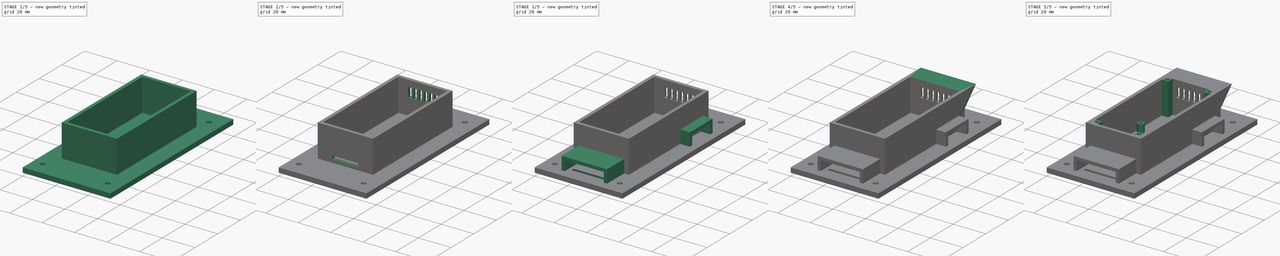
[diagram: build sequence overview — one tinted view per stage of 5, left to right]
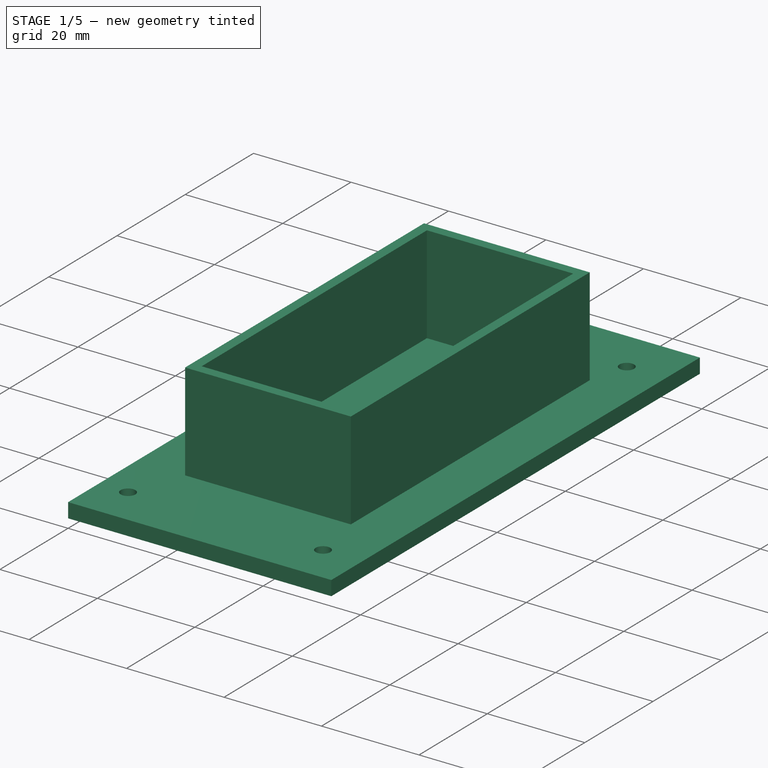
[diagram: stage 1 of 5 — iso view after this stage's code; geometry added in this stage tinted green]
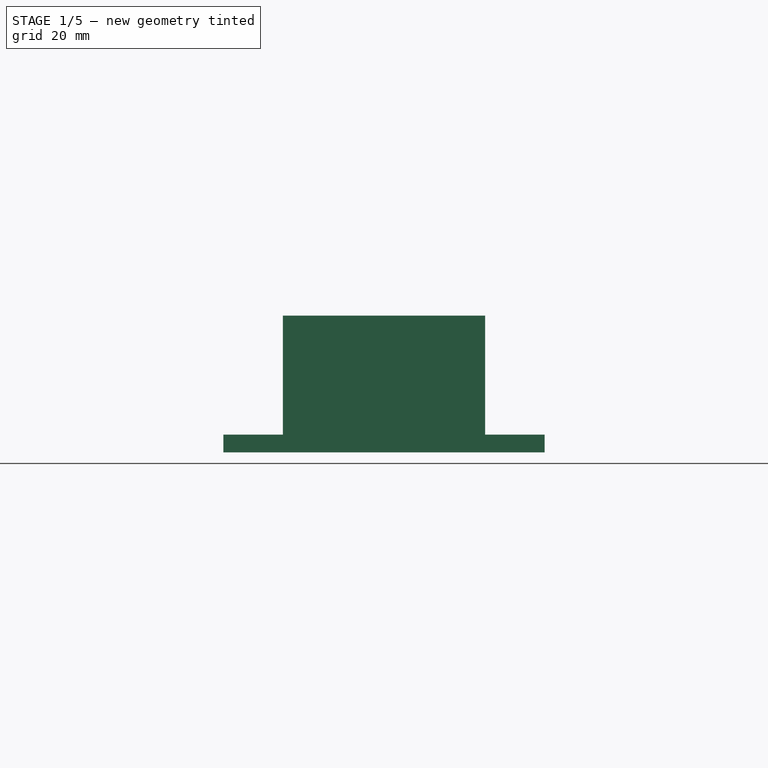
[diagram: stage 1 of 5 — front view after this stage's code; geometry added in this stage tinted green]
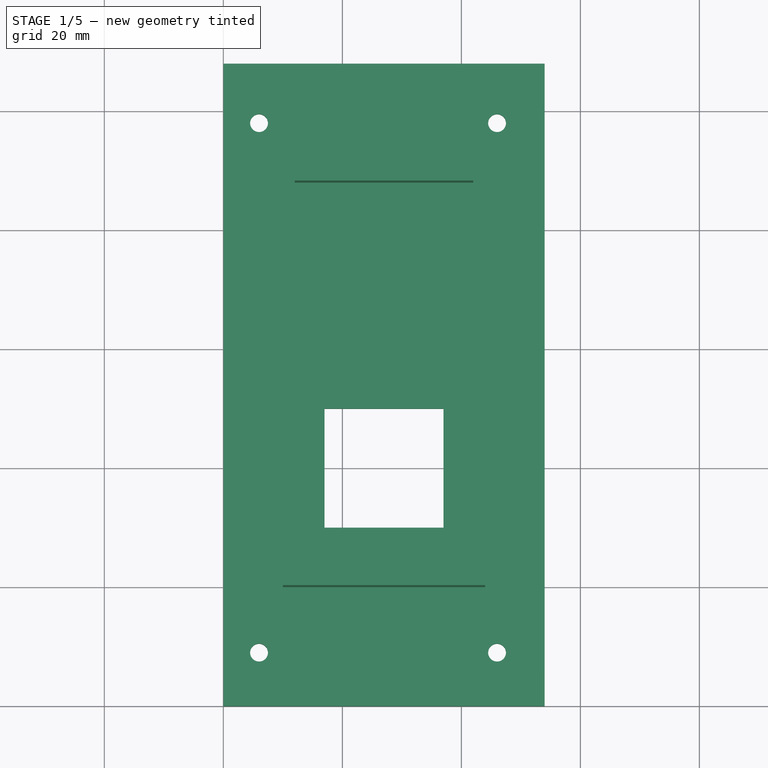
[diagram: stage 1 of 5 — top view after this stage's code; geometry added in this stage tinted green]
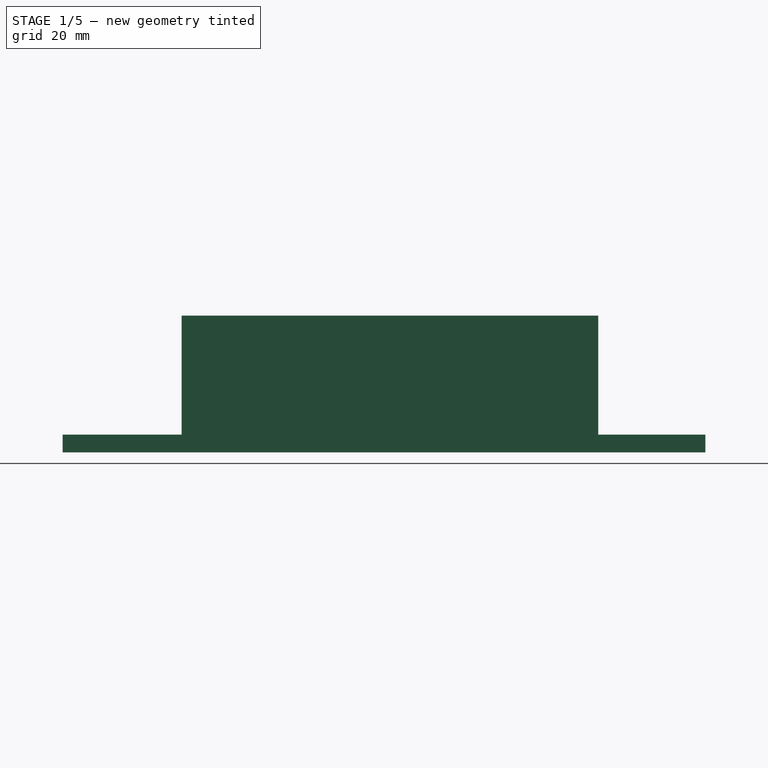
[diagram: stage 1 of 5 — right view after this stage's code; geometry added in this stage tinted green]
FCSTD DOCUMENT  (FreeCAD 0.16R6706 (Git))
Label: demo
License: All rights reserved
LicenseURL: http://en.wikipedia.org/wiki/All_rights_reserved
objects: Sketcher::SketchObject×17, PartDesign::Pad×9, PartDesign::Pocket×8, PartDesign::LinearPattern×1
note: 52 computed .brp shape members not serialized (recipe doc carries the construction recipe); baked Part::Feature solids carry a one-line shape summary decoded from their .brp

FEATURE [Sketcher::SketchObject] Sketch  label="Base"
  sketch-geometry (4):
    g0: LineSegment StartX=0 StartY=108 StartZ=0 EndX=54 EndY=108 EndZ=0
    g1: LineSegment StartX=54 StartY=108 StartZ=0 EndX=54 EndY=0 EndZ=0
    g2: LineSegment StartX=54 StartY=0 StartZ=0 EndX=0 EndY=0 EndZ=0
    g3: LineSegment StartX=0 StartY=0 StartZ=0 EndX=0 EndY=108 EndZ=0
  constraints (11):
    c: Coincident(g0,g1)
    c: Coincident(g1,g2)
    c: Coincident(g2,g3)
    c: Coincident(g3,g0)
    c: Horizontal(g0)
    c: Horizontal(g2)
    c: Vertical(g1)
    c: Vertical(g3)
    c: Coincident(g2,g-1)
    c: DistanceX(g2,g2) = 54
    c: DistanceY(g3,g3) = 108
FEATURE [PartDesign::Pad] Pad
  Length = 3
  Length2 = 100
  Sketch = -> Sketch
  Type = 0
FEATURE [Sketcher::SketchObject] Sketch001  label="Contenedor_Sensores"
  Placement = pos=(0,0,3) rot=(0,0,1;0rad)
  Support = -> Pad [Face6]
  sketch-geometry (8):
    g0: LineSegment StartX=10 StartY=90 StartZ=0 EndX=44 EndY=90 EndZ=0
    g1: LineSegment StartX=44 StartY=90 StartZ=0 EndX=44 EndY=20 EndZ=0
    g2: LineSegment StartX=44 StartY=20 StartZ=0 EndX=10 EndY=20 EndZ=0
    g3: LineSegment StartX=10 StartY=20 StartZ=0 EndX=10 EndY=90 EndZ=0
    g4: LineSegment StartX=12 StartY=88 StartZ=0 EndX=42 EndY=88 EndZ=0
    g5: LineSegment StartX=42 StartY=88 StartZ=0 EndX=42 EndY=22 EndZ=0
    g6: LineSegment StartX=42 StartY=22 StartZ=0 EndX=12 EndY=22 EndZ=0
    g7: LineSegment StartX=12 StartY=22 StartZ=0 EndX=12 EndY=88 EndZ=0
  constraints (24):
    c: Coincident(g0,g1)
    c: Coincident(g1,g2)
    c: Coincident(g2,g3)
    c: Coincident(g3,g0)
    c: Horizontal(g0)
    c: Horizontal(g2)
    c: Vertical(g1)
    c: Vertical(g3)
    c: DistanceX(g0,g0) = 34
    c: DistanceY(g3,g3) = 70
    c: Coincident(g4,g5)
    c: Coincident(g5,g6)
    c: Coincident(g6,g7)
    c: Coincident(g7,g4)
    c: Horizontal(g4)
    c: Horizontal(g6)
    c: Vertical(g5)
    c: Vertical(g7)
    c: DistanceX(g4,g4) = 30
    c: DistanceY(g7,g7) = 66
    c: DistanceX(g2,g6) = 2
    c: DistanceY(g2,g6) = 2
    c: DistanceX(g2,g-1) = -10
    c: DistanceY(g-1,g2) = 20
FEATURE [PartDesign::Pad] Pad001
  Length = 20
  Length2 = 100
  Sketch = -> Sketch001
  Type = 0
FEATURE [Sketcher::SketchObject] Sketch002  label="Tornillos_Base"
  Placement = pos=(0,0,3) rot=(0,0,1;0rad)
  Support = -> Pad001 [Face5]
  sketch-geometry (4):
    g0: Circle CenterX=6 CenterY=9 CenterZ=0 NormalX=0 NormalY=0 NormalZ=1 Radius=1.5
    g1: Circle CenterX=46 CenterY=9 CenterZ=0 NormalX=0 NormalY=0 NormalZ=1 Radius=1.5
    g2: Circle CenterX=6 CenterY=98 CenterZ=0 NormalX=0 NormalY=0 NormalZ=1 Radius=1.5
    g3: Circle CenterX=46 CenterY=98 CenterZ=0 NormalX=0 NormalY=0 NormalZ=1 Radius=1.5
  constraints (12):
    c: Radius(g0) = 1.5
    c: Radius(g1) = 1.5
    c: DistanceX(g0,g1) = 40
    c: DistanceY(g0,g1) = 0
    c: DistanceY(g-1,g0) = 9
    c: DistanceX(g0,g-1) = -6
    c: Radius(g3) = 1.5
    c: Radius(g2) = 1.5
    c: DistanceX(g2,g3) = 40
    c: DistanceY(g3,g2) = 0
    c: DistanceX(g2,g0) = 0
    c: DistanceY(g0,g2) = 89
FEATURE [PartDesign::Pocket] Pocket
  Length = 5
  Sketch = -> Sketch002
  Type = 0
FEATURE [Sketcher::SketchObject] Sketch003  label="Ventilador"
  Placement = pos=(0,0,3) rot=(0,0,1;0rad)
  Support = -> Pocket [Face20]
  sketch-geometry (4):
    g0: LineSegment StartX=17 StartY=50 StartZ=0 EndX=37 EndY=50 EndZ=0
    g1: LineSegment StartX=37 StartY=50 StartZ=0 EndX=37 EndY=30 EndZ=0
    g2: LineSegment StartX=37 StartY=30 StartZ=0 EndX=17 EndY=30 EndZ=0
    g3: LineSegment StartX=17 StartY=30 StartZ=0 EndX=17 EndY=50 EndZ=0
  constraints (12):
    c: Coincident(g0,g1)
    c: Coincident(g1,g2)
    c: Coincident(g2,g3)
    c: Coincident(g3,g0)
    c: Horizontal(g0)
    c: Horizontal(g2)
    c: Vertical(g1)
    c: Vertical(g3)
    c: DistanceX(g0,g0) = 20
    c: DistanceY(g1,g1) = 20
    c: DistanceX(g2,g-1) = -17
    c: DistanceY(g-1,g2) = 30
FEATURE [PartDesign::Pocket] Pocket001
  Length = 5
  Sketch = -> Sketch003
  Type = 0
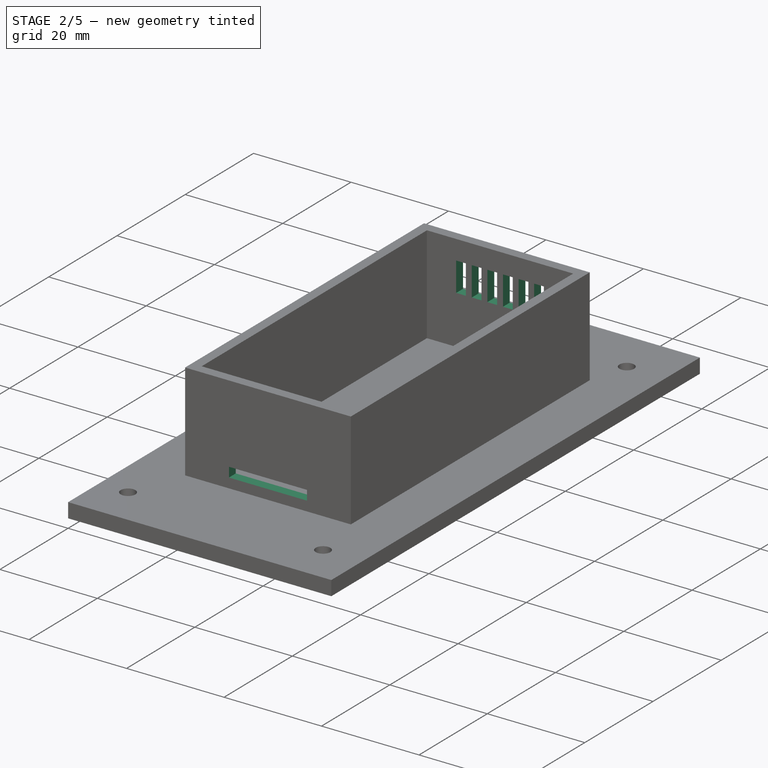
[diagram: stage 2 of 5 — iso view after this stage's code; geometry added in this stage tinted green]
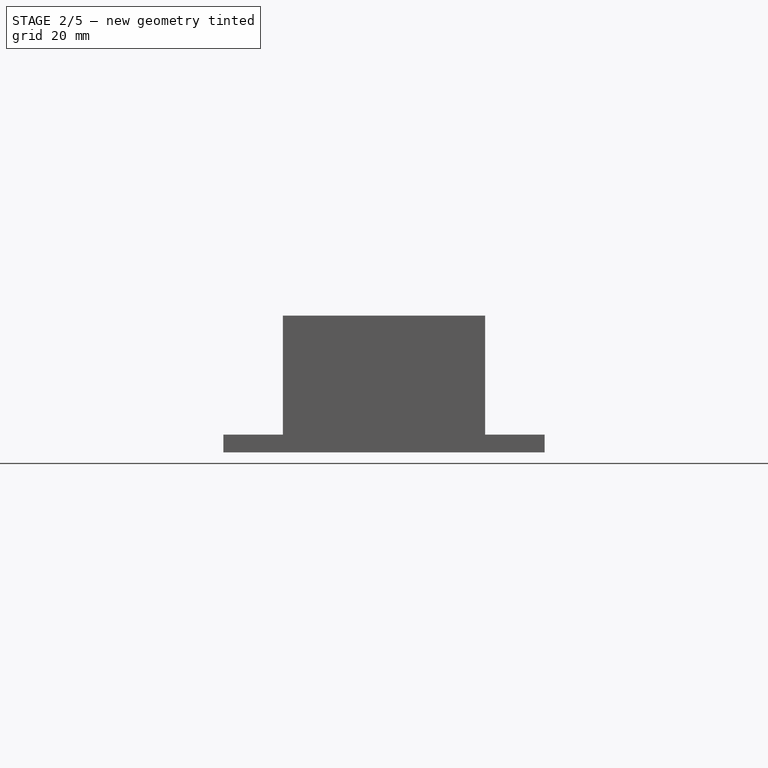
[diagram: stage 2 of 5 — front view after this stage's code; geometry added in this stage tinted green]
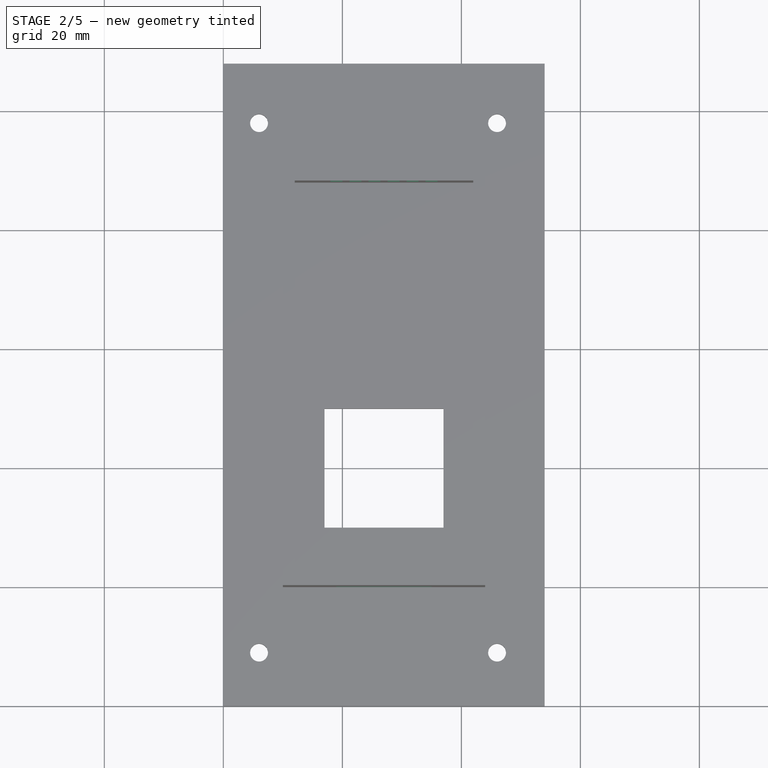
[diagram: stage 2 of 5 — top view after this stage's code; geometry added in this stage tinted green]
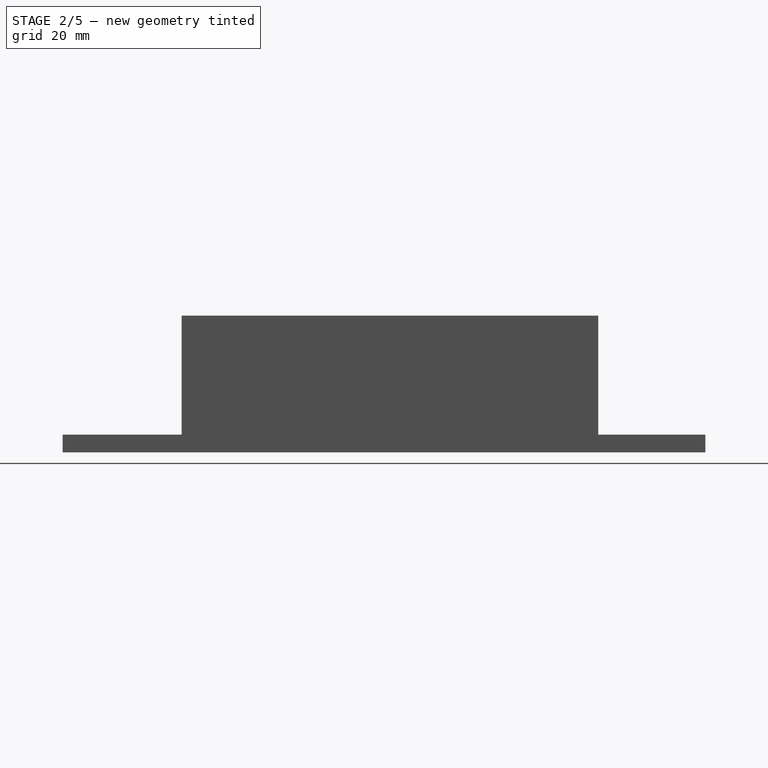
[diagram: stage 2 of 5 — right view after this stage's code; geometry added in this stage tinted green]
FEATURE [Sketcher::SketchObject] Sketch004  label="Ranuras_Entrada_Aire"
  Placement = pos=(0,90,0) rot=(0,0.707107,0.707107;3.14159rad)
  Support = -> Pocket001 [Face15]
  sketch-geometry (4):
    g0: LineSegment StartX=-36 StartY=19 StartZ=0 EndX=-34 EndY=19 EndZ=0
    g1: LineSegment StartX=-34 StartY=19 StartZ=0 EndX=-34 EndY=13 EndZ=0
    g2: LineSegment StartX=-34 StartY=13 StartZ=0 EndX=-36 EndY=13 EndZ=0
    g3: LineSegment StartX=-36 StartY=13 StartZ=0 EndX=-36 EndY=19 EndZ=0
  constraints (12):
    c: Coincident(g0,g1)
    c: Coincident(g1,g2)
    c: Coincident(g2,g3)
    c: Coincident(g3,g0)
    c: Horizontal(g0)
    c: Horizontal(g2)
    c: Vertical(g1)
    c: Vertical(g3)
    c: DistanceX(g0,g0) = 2
    c: DistanceY(g3,g3) = 6
    c: DistanceY(g-1,g2) = 13
    c: DistanceX(g2,g-1) = 36
FEATURE [PartDesign::Pocket] Pocket002
  Length = 5
  Sketch = -> Sketch004
  Type = 0
FEATURE [PartDesign::LinearPattern] LinearPattern  label="Ranurado_Aire"
  Direction = -> Sketch004 [H_Axis]
  Length = 16
  Occurrences = 6
  Originals = -> [Pocket002]
FEATURE [Sketcher::SketchObject] Sketch005  label="Ranura_Cable_Principal"
  Placement = pos=(0,20,0) rot=(1,0,0;1.5708rad)
  Support = -> LinearPattern [Face18]
  sketch-geometry (4):
    g0: LineSegment StartX=19 StartY=7 StartZ=0 EndX=35 EndY=7 EndZ=0
    g1: LineSegment StartX=35 StartY=7 StartZ=0 EndX=35 EndY=5 EndZ=0
    g2: LineSegment StartX=35 StartY=5 StartZ=0 EndX=19 EndY=5 EndZ=0
    g3: LineSegment StartX=19 StartY=5 StartZ=0 EndX=19 EndY=7 EndZ=0
  constraints (12):
    c: Coincident(g0,g1)
    c: Coincident(g1,g2)
    c: Coincident(g2,g3)
    c: Coincident(g3,g0)
    c: Horizontal(g0)
    c: Horizontal(g2)
    c: Vertical(g1)
    c: Vertical(g3)
    c: DistanceY(g1,g1) = 2
    c: DistanceX(g0,g0) = 16
    c: DistanceX(g2,g-1) = -19
    c: DistanceY(g-1,g2) = 5
FEATURE [PartDesign::Pocket] Pocket003
  Length = 5
  Sketch = -> Sketch005
  Type = 0
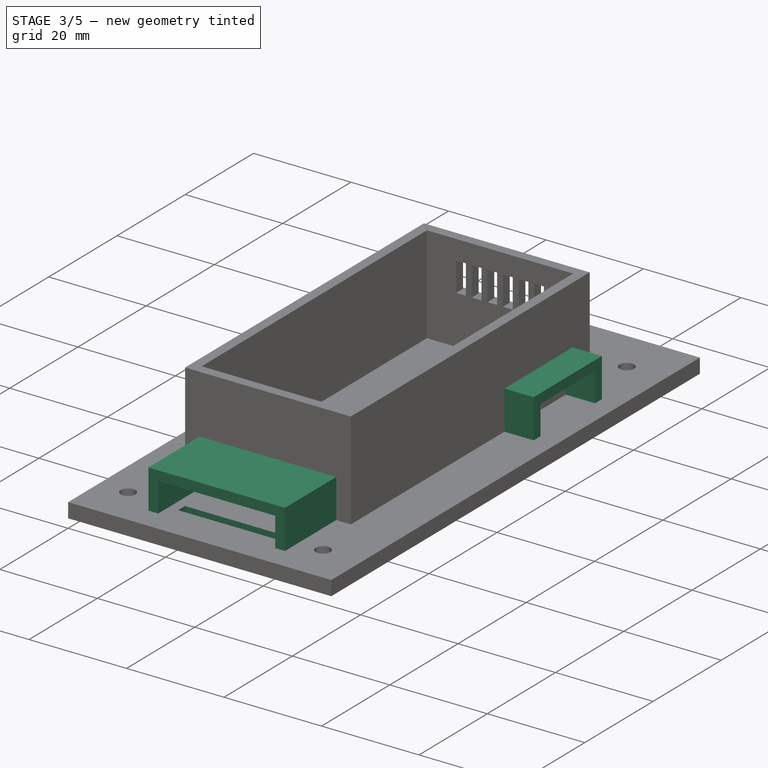
[diagram: stage 3 of 5 — iso view after this stage's code; geometry added in this stage tinted green]
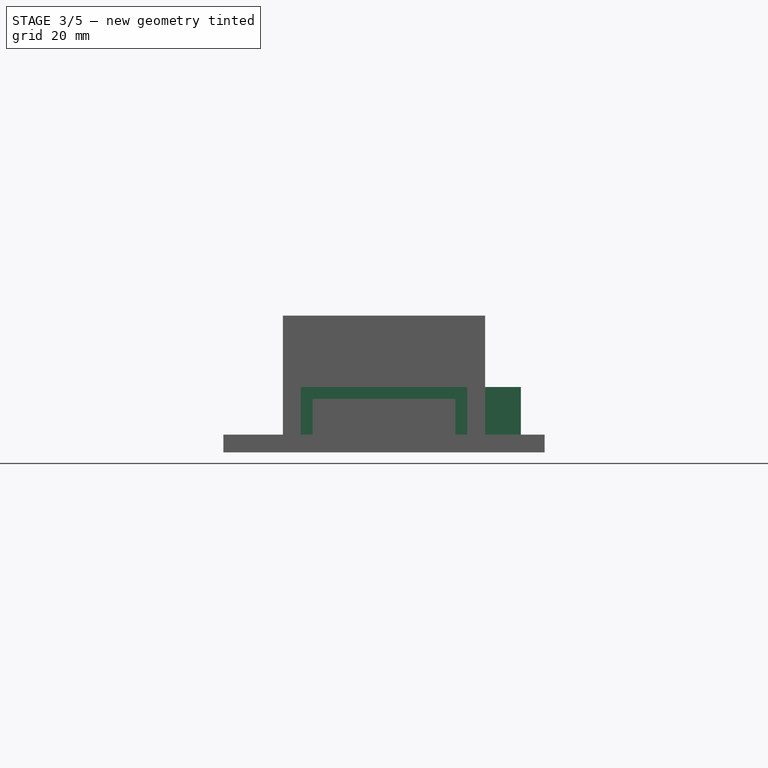
[diagram: stage 3 of 5 — front view after this stage's code; geometry added in this stage tinted green]
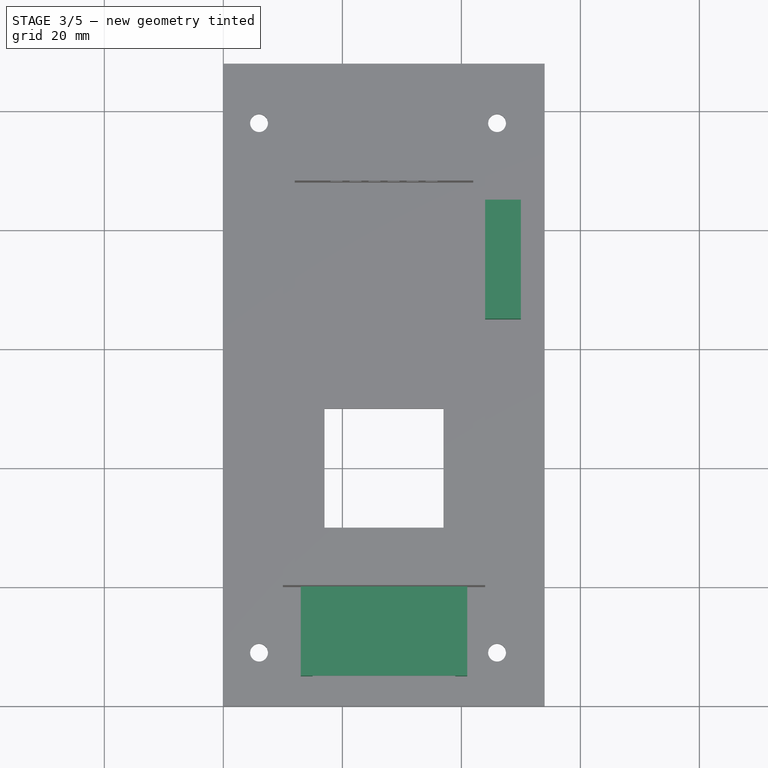
[diagram: stage 3 of 5 — top view after this stage's code; geometry added in this stage tinted green]
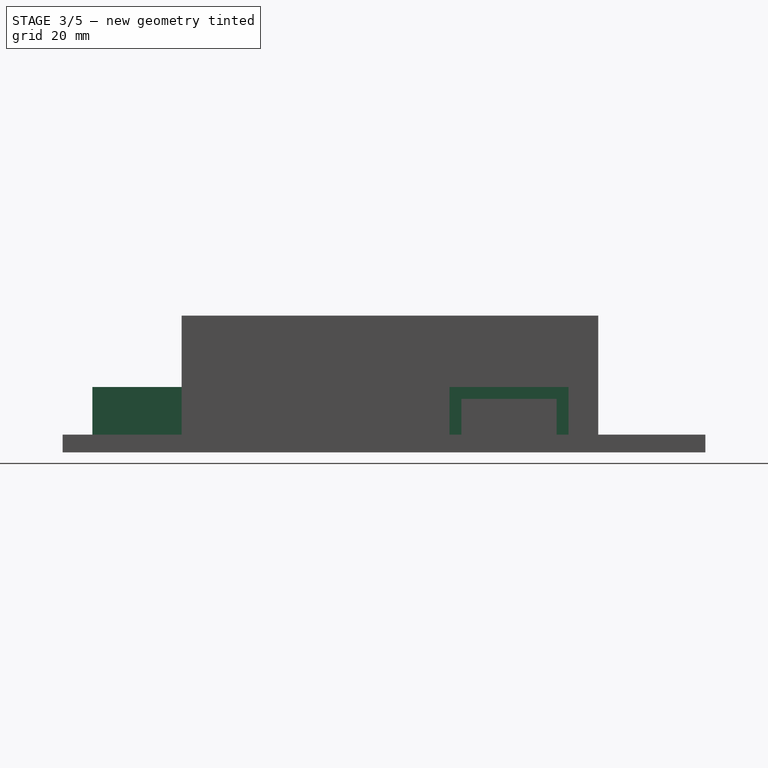
[diagram: stage 3 of 5 — right view after this stage's code; geometry added in this stage tinted green]
FEATURE [Sketcher::SketchObject] Sketch006  label="Ranura_Cable_Servos"
  Placement = pos=(44,0,0) rot=(0.57735,0.57735,0.57735;2.0944rad)
  Support = -> Pocket003 [Face17]
  sketch-geometry (4):
    g0: LineSegment StartX=70 StartY=7 StartZ=0 EndX=80 EndY=7 EndZ=0
    g1: LineSegment StartX=80 StartY=7 StartZ=0 EndX=80 EndY=5 EndZ=0
    g2: LineSegment StartX=80 StartY=5 StartZ=0 EndX=70 EndY=5 EndZ=0
    g3: LineSegment StartX=70 StartY=5 StartZ=0 EndX=70 EndY=7 EndZ=0
  constraints (12):
    c: Coincident(g0,g1)
    c: Coincident(g1,g2)
    c: Coincident(g2,g3)
    c: Coincident(g3,g0)
    c: Horizontal(g0)
    c: Horizontal(g2)
    c: Vertical(g1)
    c: Vertical(g3)
    c: DistanceY(g1,g1) = 2
    c: DistanceX(g0,g0) = 10
    c: DistanceX(g-1,g2) = 70
    c: DistanceY(g-1,g2) = 5
FEATURE [PartDesign::Pocket] Pocket004
  Length = 5
  Sketch = -> Sketch006
  Type = 0
FEATURE [Sketcher::SketchObject] Sketch007  label="Ranura_Cable_Principal_Base"
  Placement = pos=(0,0,3) rot=(0,0,1;0rad)
  Support = -> Pocket004 [Face5]
  sketch-geometry (4):
    g0: LineSegment StartX=17 StartY=10 StartZ=0 EndX=37 EndY=10 EndZ=0
    g1: LineSegment StartX=37 StartY=10 StartZ=0 EndX=37 EndY=8 EndZ=0
    g2: LineSegment StartX=37 StartY=8 StartZ=0 EndX=17 EndY=8 EndZ=0
    g3: LineSegment StartX=17 StartY=8 StartZ=0 EndX=17 EndY=10 EndZ=0
  constraints (12):
    c: Coincident(g0,g1)
    c: Coincident(g1,g2)
    c: Coincident(g2,g3)
    c: Coincident(g3,g0)
    c: Horizontal(g0)
    c: Horizontal(g2)
    c: Vertical(g1)
    c: Vertical(g3)
    c: DistanceY(g1,g1) = 2
    c: DistanceX(g0,g0) = 20
    c: DistanceX(g2,g-1) = -17
    c: DistanceY(g-1,g2) = 8
FEATURE [PartDesign::Pocket] Pocket005
  Length = 5
  Sketch = -> Sketch007
  Type = 0
FEATURE [Sketcher::SketchObject] Sketch008  label="Proteccion_Entrada_Cable_Principal"
  Placement = pos=(0,20,0) rot=(1,0,0;1.5708rad)
  Support = -> Pocket005 [Face22]
  sketch-geometry (8):
    g0: LineSegment StartX=15 StartY=9 StartZ=0 EndX=15 EndY=3 EndZ=0
    g1: LineSegment StartX=15 StartY=9 StartZ=0 EndX=39 EndY=9 EndZ=0
    g2: LineSegment StartX=39 StartY=9 StartZ=0 EndX=39 EndY=3 EndZ=0
    g3: LineSegment StartX=13 StartY=11 StartZ=0 EndX=41 EndY=11 EndZ=0
    g4: LineSegment StartX=13 StartY=11 StartZ=0 EndX=13 EndY=3 EndZ=0
    g5: LineSegment StartX=41 StartY=11 StartZ=0 EndX=41 EndY=3 EndZ=0
    g6: LineSegment StartX=13 StartY=3 StartZ=0 EndX=15 EndY=3 EndZ=0
    g7: LineSegment StartX=39 StartY=3 StartZ=0 EndX=41 EndY=3 EndZ=0
  constraints (26):
    c: DistanceY(g0,g0) = 6
    c: Coincident(g0,g1)
    c: Vertical(g2)
    c: Horizontal(g1)
    c: Vertical(g0)
    c: Coincident(g1,g2)
    c: DistanceX(g1,g1) = 24
    c: DistanceY(g2,g0) = 0
    c: Horizontal(g3)
    c: DistanceX(g3,g3) = 28
    c: Vertical(g4)
    c: DistanceY(g4,g4) = 8
    c: Coincident(g4,g3)
    c: Vertical(g5)
    c: DistanceY(g5,g5) = 8
    c: Coincident(g5,g3)
    c: DistanceX(g4,g0) = 2
    c: DistanceY(g0,g4) = 0
    c: DistanceY(g-1,g4) = 3
    c: DistanceX(g-1,g4) = 13
    c: Horizontal(g6)
    c: Coincident(g6,g4)
    c: Coincident(g6,g0)
    c: Horizontal(g7)
    c: Coincident(g7,g2)
    c: Coincident(g7,g5)
FEATURE [PartDesign::Pad] Pad002
  Length = 15
  Length2 = 100
  Sketch = -> Sketch008
  Type = 0
FEATURE [Sketcher::SketchObject] Sketch009  label="Proteccion_Entrada_Cable_Servos"
  Placement = pos=(44,0,0) rot=(0.57735,0.57735,0.57735;2.0944rad)
  Support = -> Pad002 [Face27]
  sketch-geometry (8):
    g0: LineSegment StartX=67 StartY=9 StartZ=0 EndX=83 EndY=9 EndZ=0
    g1: LineSegment StartX=67 StartY=9 StartZ=0 EndX=67 EndY=3 EndZ=0
    g2: LineSegment StartX=83 StartY=9 StartZ=0 EndX=83 EndY=3 EndZ=0
    g3: LineSegment StartX=65 StartY=11 StartZ=0 EndX=85 EndY=11 EndZ=0
    g4: LineSegment StartX=65 StartY=11 StartZ=0 EndX=65 EndY=3 EndZ=0
    g5: LineSegment StartX=85 StartY=11 StartZ=0 EndX=85 EndY=3 EndZ=0
    g6: LineSegment StartX=65 StartY=3 StartZ=0 EndX=67 EndY=3 EndZ=0
    g7: LineSegment StartX=83 StartY=3 StartZ=0 EndX=85 EndY=3 EndZ=0
  constraints (25):
    c: Horizontal(g0)
    c: DistanceX(g0,g0) = 16
    c: Vertical(g1)
    c: DistanceY(g1,g1) = 6
    c: Coincident(g1,g0)
    c: Vertical(g2)
    c: DistanceY(g2,g2) = 6
    c: Coincident(g2,g0)
    c: Horizontal(g3)
    c: DistanceX(g3,g3) = 20
    c: Vertical(g4)
    c: DistanceY(g4,g4) = 8
    c: Coincident(g4,g3)
    c: Vertical(g5)
    c: DistanceY(g5,g5) = 8
    c: Coincident(g5,g3)
    c: Horizontal(g6)
    c: DistanceX(g6,g6) = 2
    c: Coincident(g6,g4)
    c: Coincident(g6,g1)
    c: Horizontal(g7)
    c: Coincident(g7,g5)
    c: Coincident(g2,g7)
    c: DistanceY(g-1,g4) = 3
    c: DistanceX(g-1,g4) = 65
FEATURE [PartDesign::Pad] Pad003
  Length = 6
  Length2 = 100
  Sketch = -> Sketch009
  Type = 0
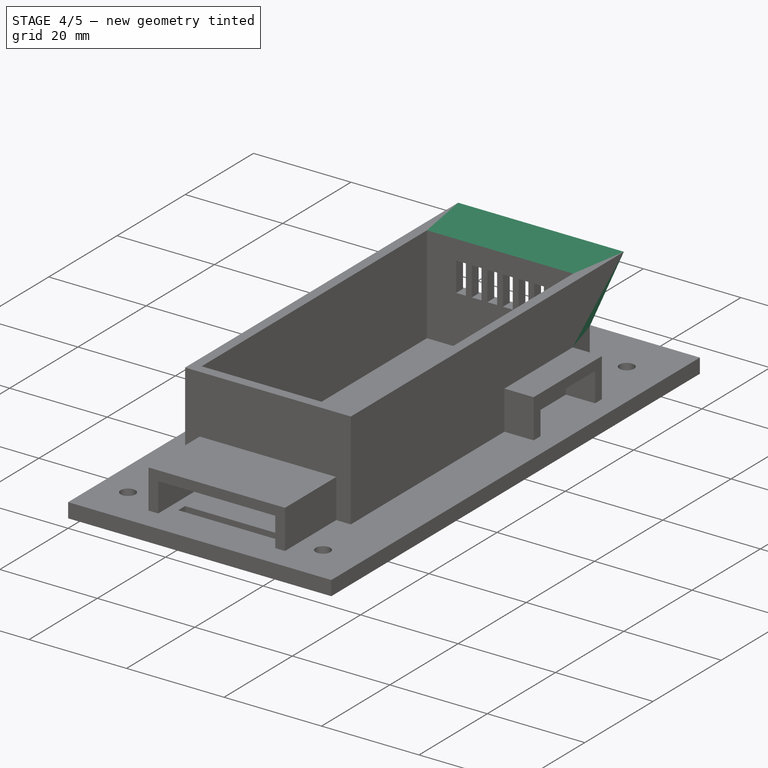
[diagram: stage 4 of 5 — iso view after this stage's code; geometry added in this stage tinted green]
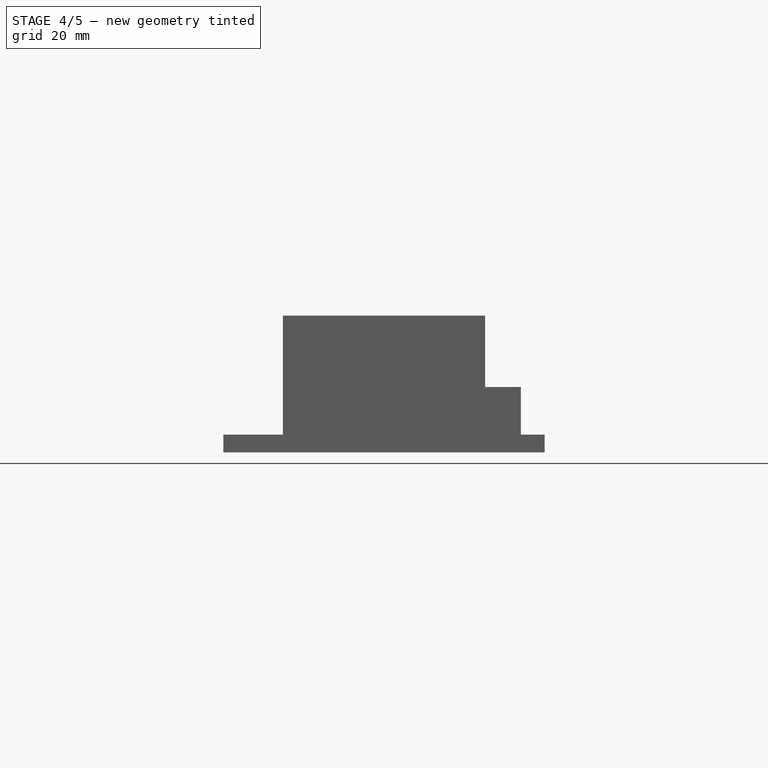
[diagram: stage 4 of 5 — front view after this stage's code; geometry added in this stage tinted green]
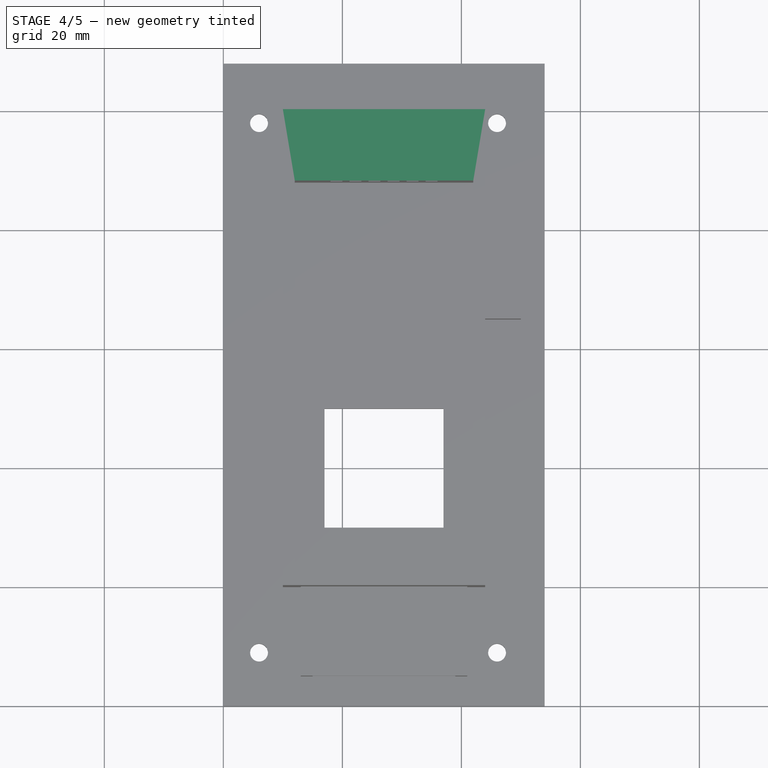
[diagram: stage 4 of 5 — top view after this stage's code; geometry added in this stage tinted green]
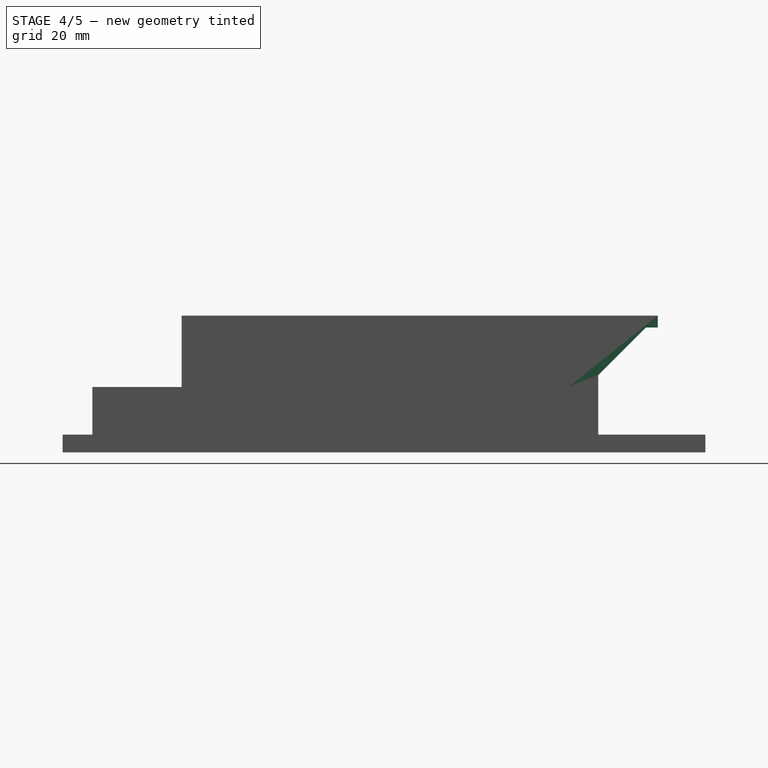
[diagram: stage 4 of 5 — right view after this stage's code; geometry added in this stage tinted green]
FEATURE [Sketcher::SketchObject] Sketch010  label="Proteccion_Entrada_Aire_Top"
  Placement = pos=(0,90,0) rot=(0,0.707107,0.707107;3.14159rad)
  Support = -> Pad003 [Face33]
  sketch-geometry (4):
    g0: LineSegment StartX=-42 StartY=23 StartZ=0 EndX=-12 EndY=23 EndZ=0
    g1: LineSegment StartX=-12 StartY=23 StartZ=0 EndX=-12 EndY=21 EndZ=0
    g2: LineSegment StartX=-12 StartY=21 StartZ=0 EndX=-42 EndY=21 EndZ=0
    g3: LineSegment StartX=-42 StartY=21 StartZ=0 EndX=-42 EndY=23 EndZ=0
  constraints (12):
    c: Coincident(g0,g1)
    c: Coincident(g1,g2)
    c: Coincident(g2,g3)
    c: Coincident(g3,g0)
    c: Horizontal(g0)
    c: Horizontal(g2)
    c: Vertical(g1)
    c: Vertical(g3)
    c: DistanceY(g1,g1) = 2
    c: DistanceX(g0,g0) = 30
    c: DistanceY(g-1,g1) = 21
    c: DistanceX(g1,g-1) = 12
FEATURE [PartDesign::Pad] Pad004
  Length = 10
  Length2 = 100
  Sketch = -> Sketch010
  Type = 0
FEATURE [Sketcher::SketchObject] Sketch011  label="Proteccion_Entrada_Aire_Derecho"
  Placement = pos=(42,0,0) rot=(0.57735,0.57735,0.57735;2.0944rad)
  Support = -> Pad004 [Face48]
  sketch-geometry (3):
    g0: LineSegment StartX=90 StartY=23 StartZ=0 EndX=100 EndY=23 EndZ=0
    g1: LineSegment StartX=90 StartY=23 StartZ=0 EndX=90 EndY=13 EndZ=0
    g2: LineSegment StartX=100 StartY=23 StartZ=0 EndX=90 EndY=13 EndZ=0
  constraints (9):
    c: Horizontal(g0)
    c: DistanceX(g0,g0) = 10
    c: Vertical(g1)
    c: DistanceY(g1,g1) = 10
    c: Coincident(g1,g0)
    c: Coincident(g2,g0)
    c: Coincident(g2,g1)
    c: DistanceX(g-1,g1) = 90
    c: DistanceY(g-1,g1) = 13
FEATURE [PartDesign::Pad] Pad005
  Length = 2
  Length2 = 100
  Sketch = -> Sketch011
  Type = 0
FEATURE [Sketcher::SketchObject] Sketch012  label="Proteccion_Entrada_Aire_Izquierdo"
  Placement = pos=(12,0,0) rot=(0.57735,-0.57735,-0.57735;2.0944rad)
  Support = -> Pad005 [Face50]
  sketch-geometry (3):
    g0: LineSegment StartX=-100 StartY=23 StartZ=0 EndX=-90 EndY=23 EndZ=0
    g1: LineSegment StartX=-90 StartY=23 StartZ=0 EndX=-90 EndY=13 EndZ=0
    g2: LineSegment StartX=-100 StartY=23 StartZ=0 EndX=-90 EndY=13 EndZ=0
  constraints (9):
    c: Horizontal(g0)
    c: DistanceX(g0,g0) = 10
    c: Vertical(g1)
    c: DistanceY(g1,g1) = 10
    c: Coincident(g1,g0)
    c: Coincident(g0,g2)
    c: Coincident(g2,g1)
    c: DistanceX(g1,g-1) = 90
    c: DistanceY(g-1,g1) = 13
FEATURE [PartDesign::Pad] Pad006
  Length = 2
  Length2 = 100
  Sketch = -> Sketch012
  Type = 0
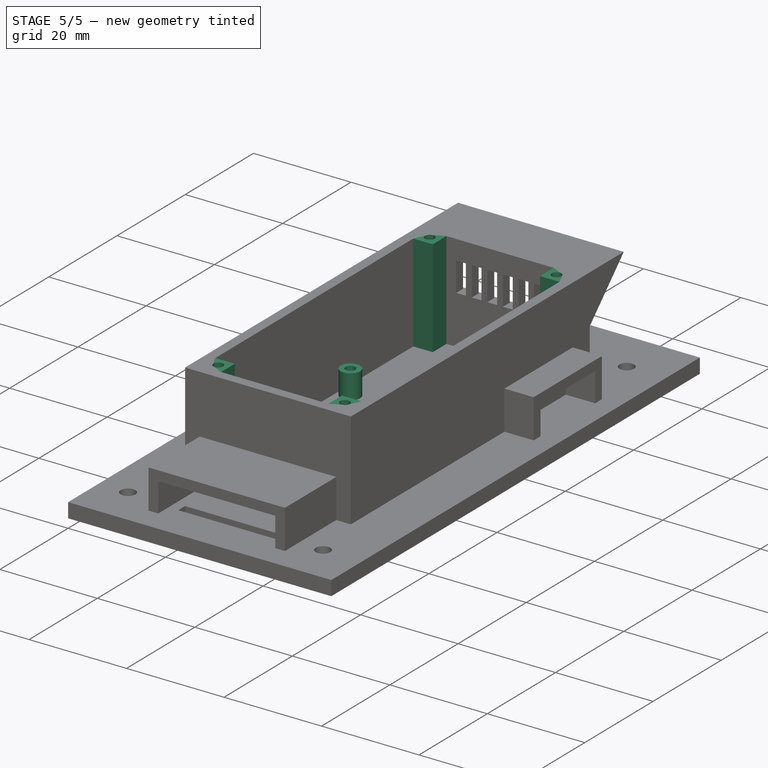
[diagram: stage 5 of 5 — iso view after this stage's code; geometry added in this stage tinted green]
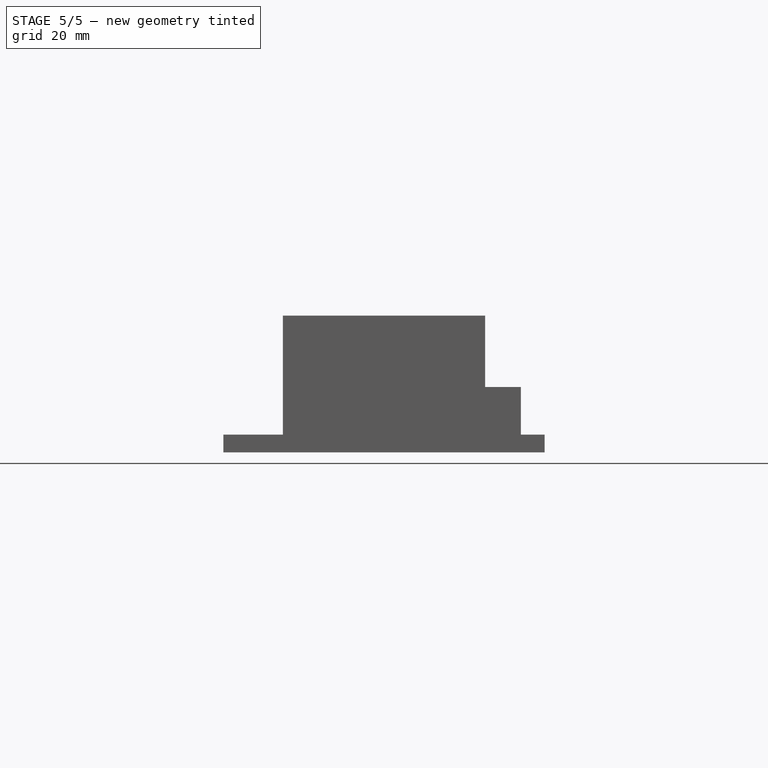
[diagram: stage 5 of 5 — front view after this stage's code; geometry added in this stage tinted green]
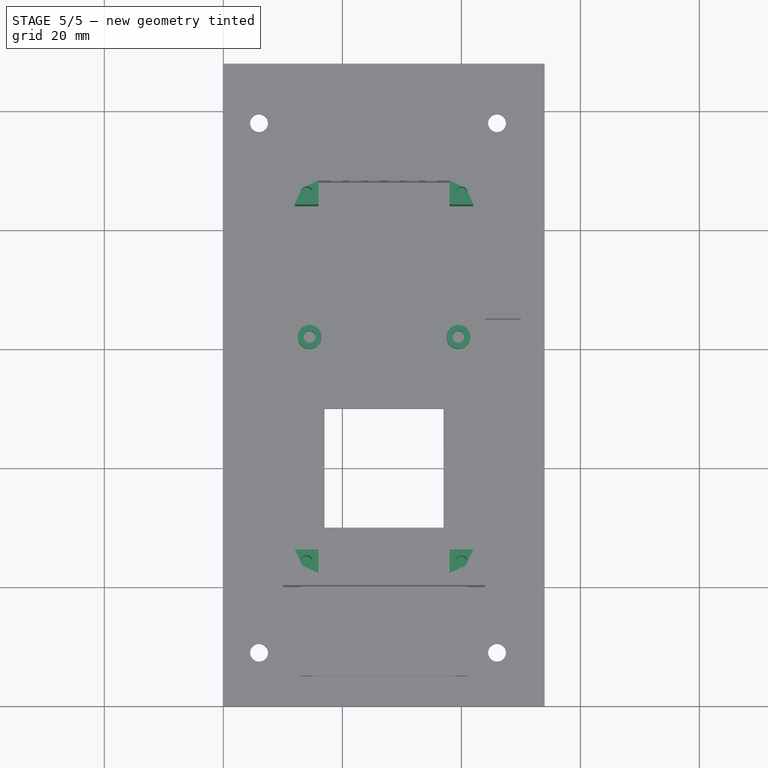
[diagram: stage 5 of 5 — top view after this stage's code; geometry added in this stage tinted green]
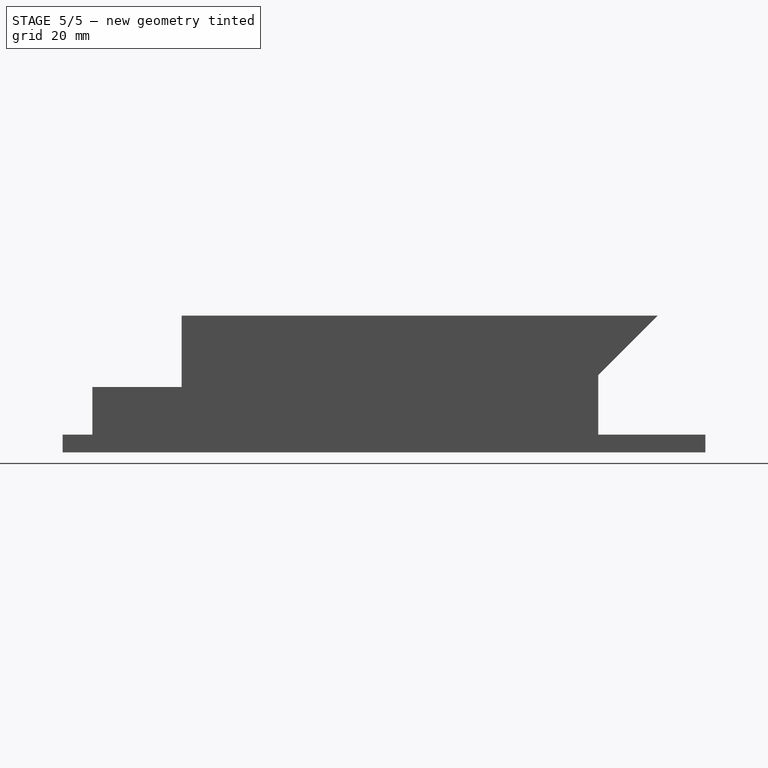
[diagram: stage 5 of 5 — right view after this stage's code; geometry added in this stage tinted green]
FEATURE [Sketcher::SketchObject] Sketch013  label="Soportes_Tornillos_Tapa_Superior"
  Placement = pos=(0,0,3) rot=(0,0,1;0rad)
  Support = -> Pad006 [Face34]
  sketch-geometry (16):
    g0: LineSegment StartX=12 StartY=26 StartZ=0 EndX=16 EndY=26 EndZ=0
    g1: LineSegment StartX=16 StartY=26 StartZ=0 EndX=16 EndY=22 EndZ=0
    g2: LineSegment StartX=16 StartY=22 StartZ=0 EndX=12 EndY=22 EndZ=0
    g3: LineSegment StartX=12 StartY=22 StartZ=0 EndX=12 EndY=26 EndZ=0
    g4: LineSegment StartX=38 StartY=26 StartZ=0 EndX=42 EndY=26 EndZ=0
    g5: LineSegment StartX=42 StartY=26 StartZ=0 EndX=42 EndY=22 EndZ=0
    g6: LineSegment StartX=42 StartY=22 StartZ=0 EndX=38 EndY=22 EndZ=0
    g7: LineSegment StartX=38 StartY=22 StartZ=0 EndX=38 EndY=26 EndZ=0
    g8: LineSegment StartX=12 StartY=88 StartZ=0 EndX=16 EndY=88 EndZ=0
    g9: LineSegment StartX=16 StartY=88 StartZ=0 EndX=16 EndY=84 EndZ=0
    g10: LineSegment StartX=16 StartY=84 StartZ=0 EndX=12 EndY=84 EndZ=0
    g11: LineSegment StartX=12 StartY=84 StartZ=0 EndX=12 EndY=88 EndZ=0
    g12: LineSegment StartX=38 StartY=88 StartZ=0 EndX=42 EndY=88 EndZ=0
    g13: LineSegment StartX=42 StartY=88 StartZ=0 EndX=42 EndY=84 EndZ=0
    g14: LineSegment StartX=42 StartY=84 StartZ=0 EndX=38 EndY=84 EndZ=0
    g15: LineSegment StartX=38 StartY=84 StartZ=0 EndX=38 EndY=88 EndZ=0
  constraints (48):
    c: Coincident(g0,g1)
    c: Coincident(g1,g2)
    c: Coincident(g2,g3)
    c: Coincident(g3,g0)
    c: Horizontal(g0)
    c: Horizontal(g2)
    c: Vertical(g1)
    c: Vertical(g3)
    c: DistanceX(g0,g0) = 4
    c: DistanceY(g1,g1) = 4
    c: DistanceX(g2,g-1) = -12
    c: DistanceY(g-1,g2) = 22
    c: Coincident(g4,g5)
    c: Coincident(g5,g6)
    c: Coincident(g6,g7)
    c: Coincident(g7,g4)
    c: Horizontal(g4)
    c: Horizontal(g6)
    c: Vertical(g5)
    c: Vertical(g7)
    c: DistanceX(g4,g4) = 4
    c: DistanceY(g7,g7) = 4
    c: DistanceX(g6,g1) = -22
    c: DistanceY(g1,g6) = 0
    c: Coincident(g8,g9)
    c: Coincident(g9,g10)
    c: Coincident(g10,g11)
    c: Coincident(g11,g8)
    c: Horizontal(g8)
    c: Horizontal(g10)
    c: Vertical(g9)
    c: Vertical(g11)
    c: DistanceX(g8,g8) = 4
    c: DistanceY(g11,g11) = 4
    c: DistanceY(g0,g10) = 58
    c: DistanceX(g10,g0) = 0
    c: Coincident(g12,g13)
    c: Coincident(g13,g14)
    c: Coincident(g14,g15)
    c: Coincident(g15,g12)
    c: Horizontal(g12)
    c: Horizontal(g14)
    c: Vertical(g13)
    c: Vertical(g15)
    c: DistanceX(g12,g12) = 4
    c: DistanceY(g13,g13) = 4
    c: DistanceY(g9,g14) = 0
    c: DistanceX(g14,g9) = -22
FEATURE [PartDesign::Pad] Pad007
  Length = 20
  Length2 = 100
  Sketch = -> Sketch013
  Type = 0
FEATURE [Sketcher::SketchObject] Sketch014  label="Proteccion_Entrada_Aire_Eliminacion_Borde"
  Placement = pos=(12,0,0) rot=(0.57735,-0.57735,-0.57735;2.0944rad)
  Support = -> Pad007 [Face91]
  sketch-geometry (3):
    g0: LineSegment StartX=-100.074 StartY=23.1114 StartZ=0 EndX=-100.074 EndY=20.7326 EndZ=0
    g1: LineSegment StartX=-100.074 StartY=20.7326 StartZ=0 EndX=-97.7303 EndY=20.7326 EndZ=0
    g2: LineSegment StartX=-100.074 StartY=23.1114 StartZ=0 EndX=-97.7303 EndY=20.7326 EndZ=0
  constraints (5):
    c: Vertical(g0)
    c: Horizontal(g1)
    c: Coincident(g0,g1)
    c: Coincident(g2,g0)
    c: Coincident(g2,g1)
FEATURE [PartDesign::Pocket] Pocket006
  Length = 60
  Sketch = -> Sketch014
  Type = 0
FEATURE [Sketcher::SketchObject] Sketch015  label="Tornillos_Tapa_Superior"
  Placement = pos=(0,0,23) rot=(0,0,1;0rad)
  Support = -> Pocket006 [Face37]
  sketch-geometry (4):
    g0: Circle CenterX=14 CenterY=24 CenterZ=0 NormalX=0 NormalY=0 NormalZ=1 Radius=1
    g1: Circle CenterX=40 CenterY=24 CenterZ=0 NormalX=0 NormalY=0 NormalZ=1 Radius=1
    g2: Circle CenterX=14 CenterY=86 CenterZ=0 NormalX=0 NormalY=0 NormalZ=1 Radius=1
    g3: Circle CenterX=40 CenterY=86 CenterZ=0 NormalX=0 NormalY=0 NormalZ=1 Radius=1
  constraints (12):
    c: Radius(g0) = 1
    c: Radius(g1) = 1
    c: DistanceY(g1,g0) = 0
    c: DistanceX(g0,g1) = 26
    c: DistanceX(g-1,g0) = 14
    c: Radius(g2) = 1
    c: Radius(g3) = 1
    c: DistanceY(g3,g2) = 0
    c: DistanceX(g2,g3) = 26
    c: DistanceX(g2,g0) = 0
    c: DistanceY(g0,g2) = 62
    c: DistanceY(g-1,g0) = 24
FEATURE [PartDesign::Pocket] Pocket007
  Length = 10
  Sketch = -> Sketch015
  Type = 0
FEATURE [Sketcher::SketchObject] Sketch016  label="Soportes_Circuito"
  Placement = pos=(0,0,3) rot=(0,0,1;0rad)
  Support = -> Pocket007 [Face35]
  sketch-geometry (4):
    g0: Circle CenterX=14.5 CenterY=62 CenterZ=0 NormalX=0 NormalY=0 NormalZ=1 Radius=1
    g1: Circle CenterX=14.5 CenterY=62 CenterZ=0 NormalX=0 NormalY=0 NormalZ=1 Radius=2
    g2: Circle CenterX=39.5 CenterY=62 CenterZ=0 NormalX=0 NormalY=0 NormalZ=1 Radius=1
    g3: Circle CenterX=39.5 CenterY=62 CenterZ=0 NormalX=0 NormalY=0 NormalZ=1 Radius=2
  constraints (10):
    c: Radius(g0) = 1
    c: Radius(g1) = 2
    c: Coincident(g1,g0)
    c: Radius(g2) = 1
    c: Radius(g3) = 2
    c: Coincident(g3,g2)
    c: DistanceY(g2,g0) = 0
    c: DistanceX(g0,g2) = 25
    c: DistanceY(g-1,g0) = 62
    c: DistanceX(g-1,g0) = 14.5
FEATURE [PartDesign::Pad] Pad008
  Length = 5
  Length2 = 100
  Sketch = -> Sketch016
  Type = 0
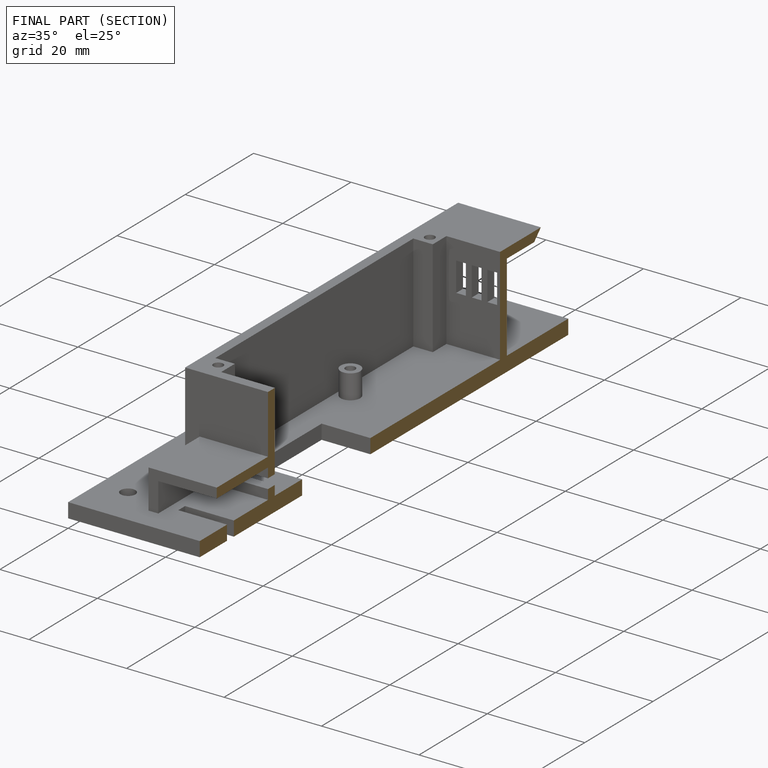
[diagram: finished part — half-section view (interior)]
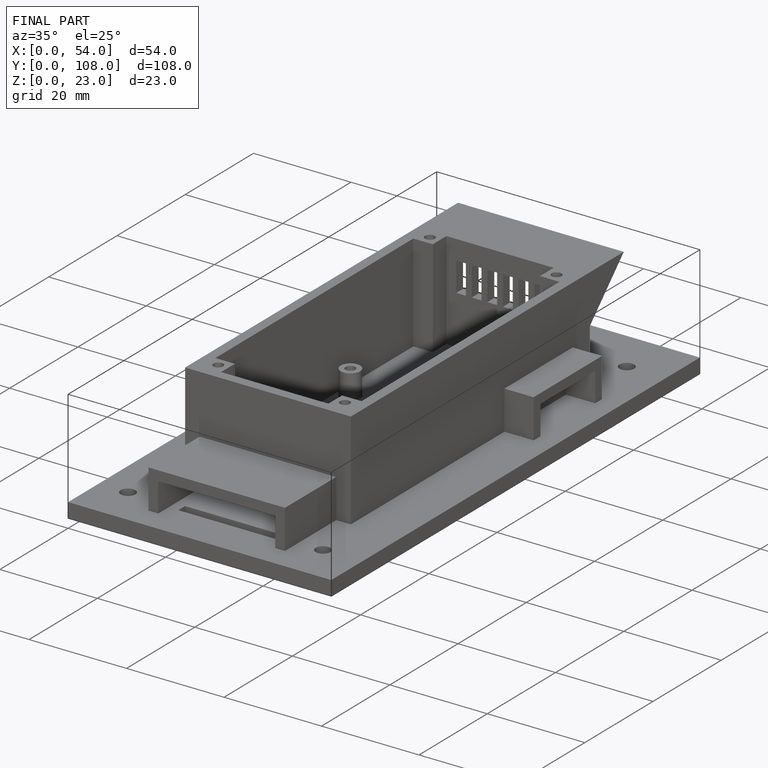
[diagram: finished part — iso view with bounding-box wireframe]
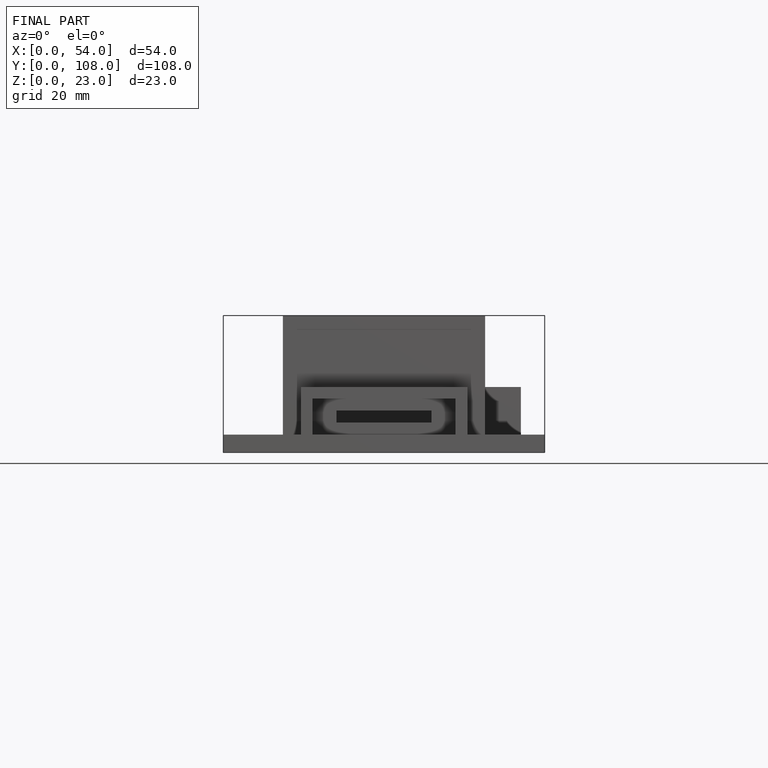
[diagram: finished part — front view with bounding-box wireframe]
